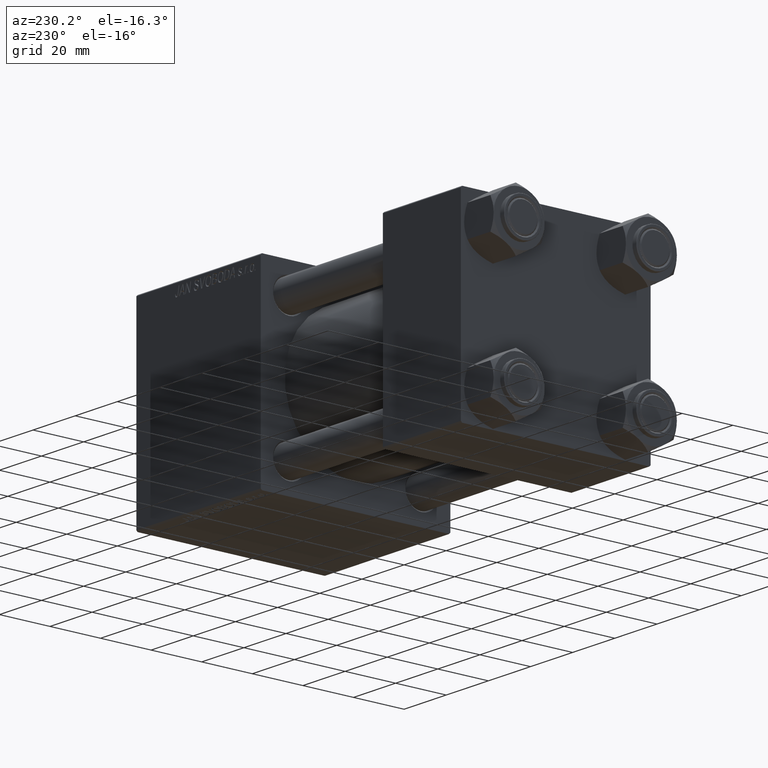
[diagram: clean part render]
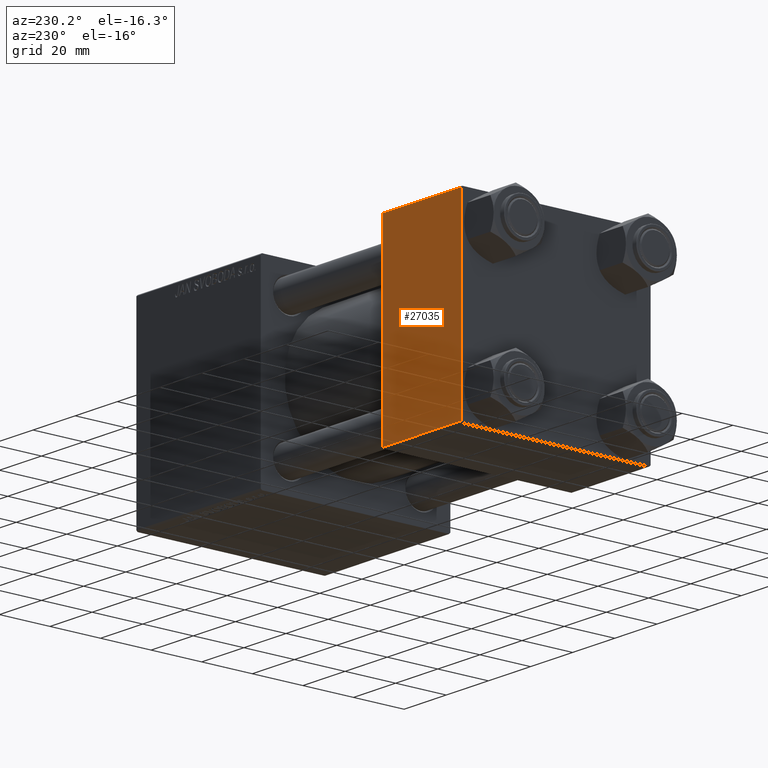
[diagram: same view with one face highlighted and labeled with its STEP entity id]
A machine part, auxiliary view. The second image highlights one B-rep face of the part: STEP entity #27035.
In plain terms, the highlighted planar face has unit normal (0, 1, 0).
Its self-contained STEP definition (entity closure, byte-faithful):
#1203 = LINE ( 'NONE', #4001, #20635 ) ;
#1796 = VERTEX_POINT ( 'NONE', #35277 ) ;
#3626 = ORIENTED_EDGE ( 'NONE', *, *, #35172, .T. ) ;
#4001 = CARTESIAN_POINT ( 'NONE',  ( 37.00000000000000000, 37.49999999999999289, 37.50000000000000000 ) ) ;
#5358 = VECTOR ( 'NONE', #31015, 1000.000000000000000 ) ;
#5518 = DIRECTION ( 'NONE',  ( 0.000000000000000000, -0.000000000000000000, 1.000000000000000000 ) ) ;
#8774 = CARTESIAN_POINT ( 'NONE',  ( 0.000000000000000000, 37.49999999999999289, 37.00000000000000000 ) ) ;
#9815 = PLANE ( 'NONE',  #26252 ) ;
#11788 = VECTOR ( 'NONE', #32838, 1000.000000000000000 ) ;
#12694 = VERTEX_POINT ( 'NONE', #30690 ) ;
#13953 = VERTEX_POINT ( 'NONE', #8774 ) ;
#15520 = LINE ( 'NONE', #31273, #5358 ) ;
#17960 = EDGE_CURVE ( 'NONE', #13953, #1796, #34232, .T. ) ;
#18508 = DIRECTION ( 'NONE',  ( 0.000000000000000000, 0.000000000000000000, -1.000000000000000000 ) ) ;
#18533 = LINE ( 'NONE', #21408, #11788 ) ;
#18766 = EDGE_CURVE ( 'NONE', #49402, #1796, #15520, .T. ) ;
#20635 = VECTOR ( 'NONE', #35730, 1000.000000000000000 ) ;
#21408 = CARTESIAN_POINT ( 'NONE',  ( 37.00000000000000000, 37.49999999999999289, 37.00000000000000000 ) ) ;
#22627 = CARTESIAN_POINT ( 'NONE',  ( 37.00000000000000000, 37.49999999999999289, -36.99999999999998579 ) ) ;
#26252 = AXIS2_PLACEMENT_3D ( 'NONE', #44357, #36986, #5518 ) ;
#27035 = ADVANCED_FACE ( 'NONE', ( #33420 ), #9815, .T. ) ;
#27737 = EDGE_LOOP ( 'NONE', ( #41348, #47418, #31323, #3626 ) ) ;
#30690 = CARTESIAN_POINT ( 'NONE',  ( 37.00000000000000000, 37.49999999999999289, 37.00000000000000000 ) ) ;
#31015 = DIRECTION ( 'NONE',  ( -1.000000000000000000, 0.000000000000000000, 0.000000000000000000 ) ) ;
#31273 = CARTESIAN_POINT ( 'NONE',  ( 37.00000000000000000, 37.49999999999999289, -36.99999999999998579 ) ) ;
#31323 = ORIENTED_EDGE ( 'NONE', *, *, #17960, .F. ) ;
#32838 = DIRECTION ( 'NONE',  ( 1.000000000000000000, 0.000000000000000000, 0.000000000000000000 ) ) ;
#33061 = EDGE_CURVE ( 'NONE', #12694, #49402, #1203, .T. ) ;
#33420 = FACE_OUTER_BOUND ( 'NONE', #27737, .T. ) ;
#34232 = LINE ( 'NONE', #41865, #45052 ) ;
#35172 = EDGE_CURVE ( 'NONE', #13953, #12694, #18533, .T. ) ;
#35277 = CARTESIAN_POINT ( 'NONE',  ( 0.000000000000000000, 37.49999999999999289, -36.99999999999998579 ) ) ;
#35730 = DIRECTION ( 'NONE',  ( 0.000000000000000000, 0.000000000000000000, -1.000000000000000000 ) ) ;
#36986 = DIRECTION ( 'NONE',  ( -0.000000000000000000, 1.000000000000000000, 0.000000000000000000 ) ) ;
#41348 = ORIENTED_EDGE ( 'NONE', *, *, #33061, .T. ) ;
#41865 = CARTESIAN_POINT ( 'NONE',  ( 0.000000000000000000, 37.49999999999999289, 37.50000000000000000 ) ) ;
#44357 = CARTESIAN_POINT ( 'NONE',  ( 37.00000000000000000, 37.49999999999999289, 37.50000000000000000 ) ) ;
#45052 = VECTOR ( 'NONE', #18508, 1000.000000000000000 ) ;
#47418 = ORIENTED_EDGE ( 'NONE', *, *, #18766, .T. ) ;
#49402 = VERTEX_POINT ( 'NONE', #22627 ) ;